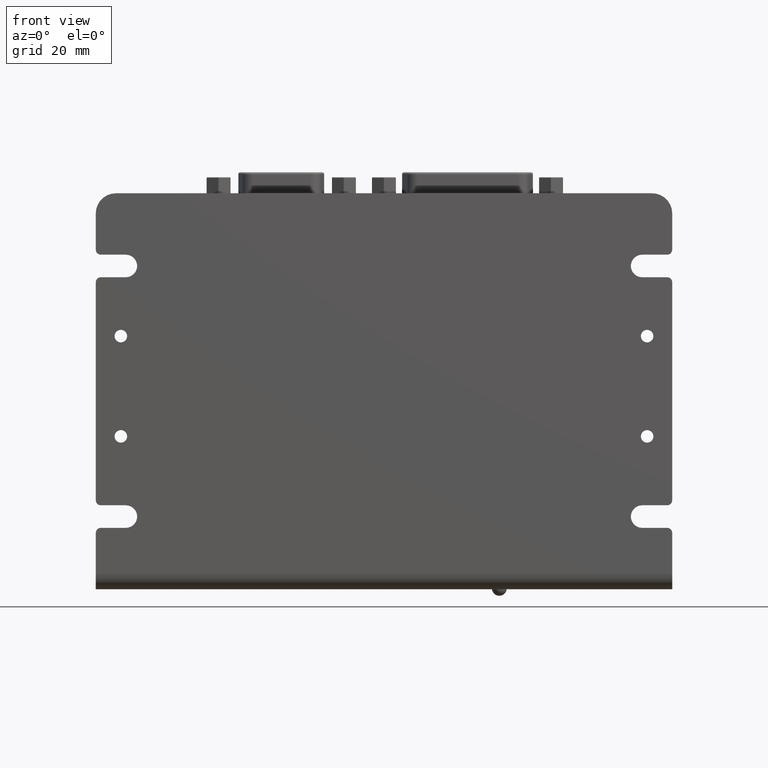
[diagram: clean part render]
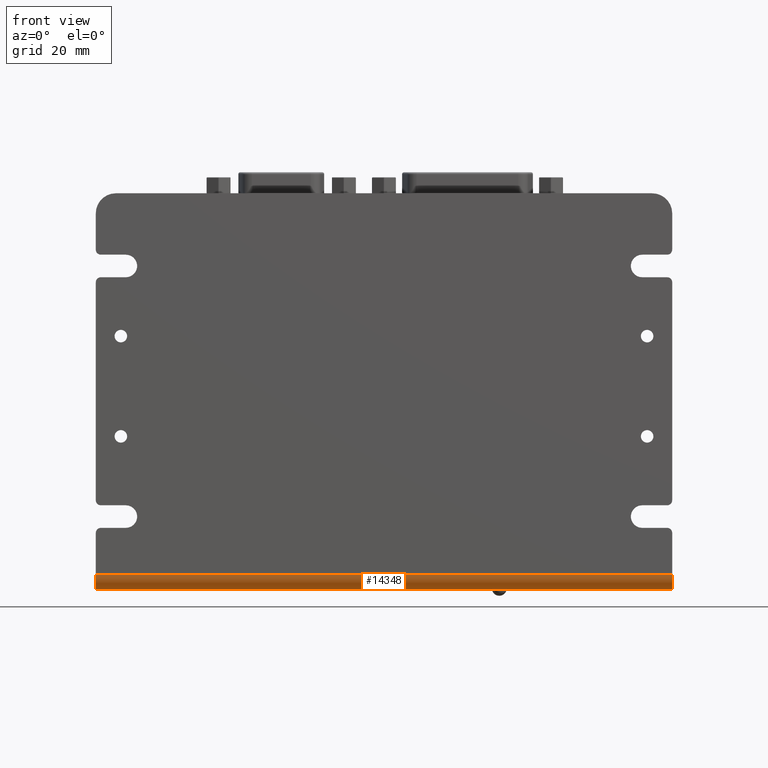
[diagram: same view with one face highlighted and labeled with its STEP entity id]
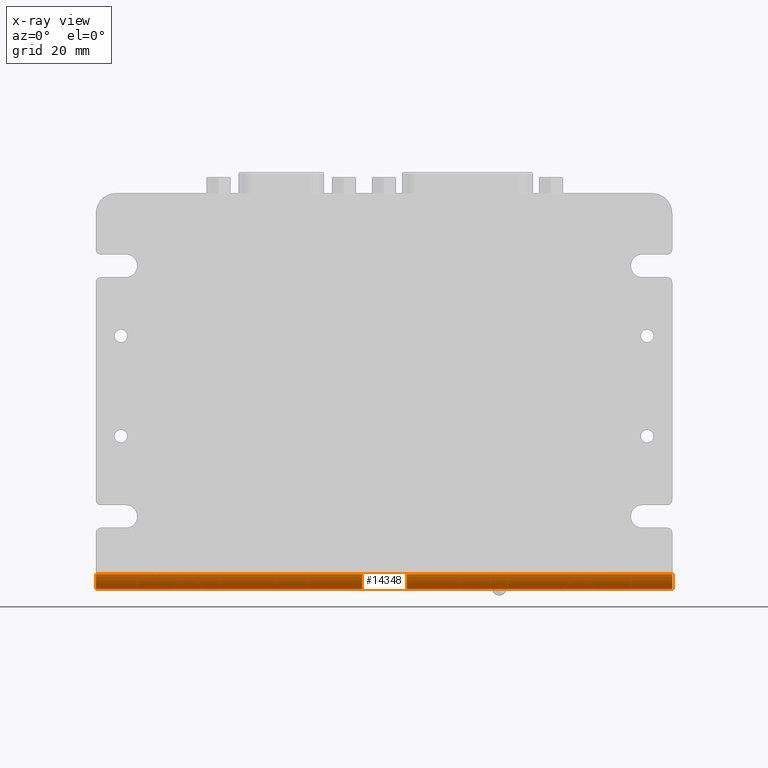
[diagram: x-ray of the same camera — body ghosted, the highlighted face saturated]
A machine part, front view. The second image highlights one B-rep face of the part: STEP entity #14348.
The next image is the same camera in x-ray: the body ghosted, the highlighted face saturated — about 0% of this face is hidden behind the body in this view.
In plain terms, the highlighted cylindrical surface (edge-blend (fillet) strip) has radius 3 mm, axis along (-1, 0, 0).
Its self-contained STEP definition (entity closure, byte-faithful):
#42=CARTESIAN_POINT('',(-5.75E1,3.E0,-3.65E1));
#43=DIRECTION('',(-1.E0,0.E0,0.E0));
#44=DIRECTION('',(0.E0,0.E0,-1.E0));
#45=AXIS2_PLACEMENT_3D('',#42,#43,#44);
#147=DIRECTION('',(-1.E0,0.E0,0.E0));
#148=VECTOR('',#147,1.15E2);
#149=CARTESIAN_POINT('',(5.75E1,0.E0,-3.65E1));
#150=LINE('',#149,#148);
#731=CARTESIAN_POINT('',(5.75E1,3.E0,-3.65E1));
#732=DIRECTION('',(1.E0,0.E0,0.E0));
#733=DIRECTION('',(0.E0,-1.E0,0.E0));
#734=AXIS2_PLACEMENT_3D('',#731,#732,#733);
#990=DIRECTION('',(-1.E0,0.E0,0.E0));
#991=VECTOR('',#990,1.15E2);
#992=CARTESIAN_POINT('',(5.75E1,3.E0,-3.95E1));
#993=LINE('',#992,#991);
#8650=CARTESIAN_POINT('',(-5.75E1,3.E0,-3.95E1));
#8651=CARTESIAN_POINT('',(-5.75E1,0.E0,-3.65E1));
#8652=VERTEX_POINT('',#8650);
#8653=VERTEX_POINT('',#8651);
#8654=CARTESIAN_POINT('',(5.75E1,0.E0,-3.65E1));
#8655=VERTEX_POINT('',#8654);
#8656=CARTESIAN_POINT('',(5.75E1,3.E0,-3.95E1));
#8657=VERTEX_POINT('',#8656);
#14337=CARTESIAN_POINT('',(2.07414E2,3.E0,-3.65E1));
#14338=DIRECTION('',(-1.E0,0.E0,0.E0));
#14339=DIRECTION('',(0.E0,0.E0,-1.E0));
#14340=AXIS2_PLACEMENT_3D('',#14337,#14338,#14339);
#14341=CYLINDRICAL_SURFACE('',#14340,3.E0);
#14342=ORIENTED_EDGE('',*,*,#11511,.T.);
#14343=ORIENTED_EDGE('',*,*,#11578,.F.);
#14344=ORIENTED_EDGE('',*,*,#12353,.T.);
#14345=ORIENTED_EDGE('',*,*,#12664,.T.);
#14346=EDGE_LOOP('',(#14342,#14343,#14344,#14345));
#14347=FACE_OUTER_BOUND('',#14346,.F.);
#14348=ADVANCED_FACE('',(#14347),#14341,.T.);
#46=CIRCLE('',#45,3.E0);
#735=CIRCLE('',#734,3.E0);
#11511=EDGE_CURVE('',#8652,#8653,#46,.T.);
#11578=EDGE_CURVE('',#8655,#8653,#150,.T.);
#12353=EDGE_CURVE('',#8655,#8657,#735,.T.);
#12664=EDGE_CURVE('',#8657,#8652,#993,.T.);